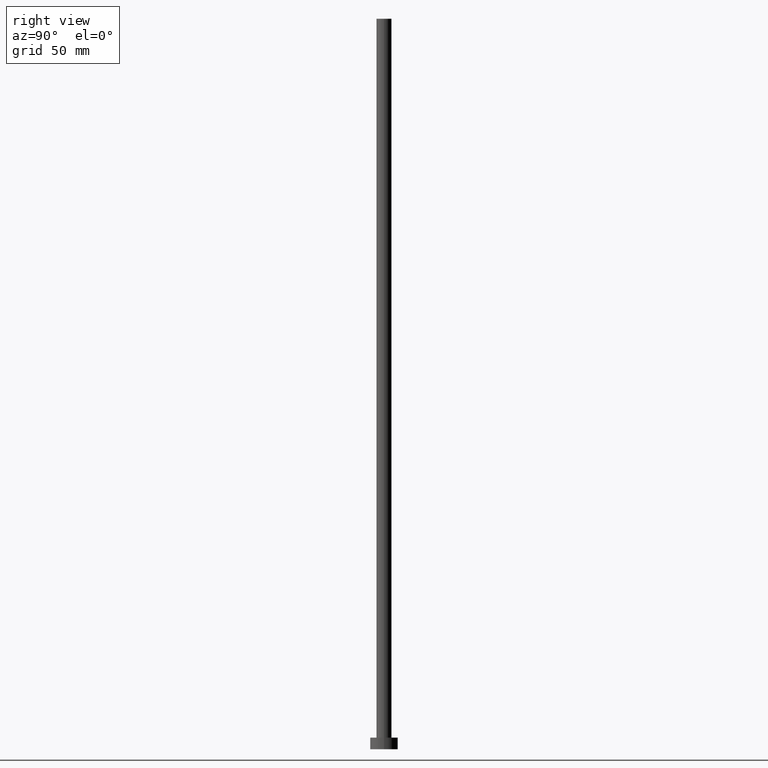
[diagram: clean part render]
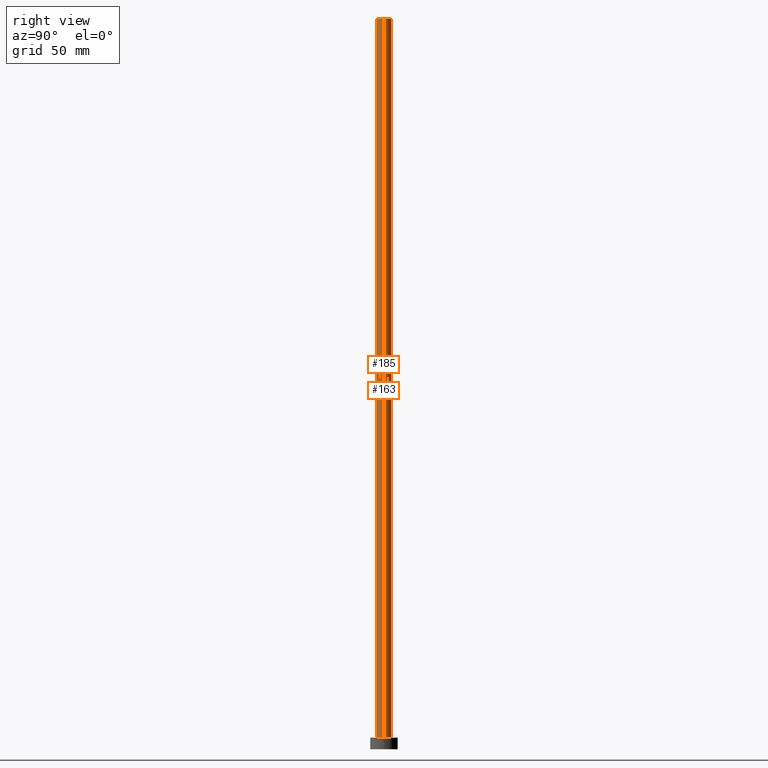
[diagram: same view with one multi-face feature highlighted, each face labeled with its STEP entity id]
A machine part, right view. The highlighted faces form ONE feature: a constant-radius fillet chain: 2 tangent blend faces with common blend radius 3.25 mm. The faces share edges in the B-rep.
Their STEP definitions:
[1] entity #163 (Cylinder):
#7 = CARTESIAN_POINT ( 'NONE',  ( 3.250000000000000444, 3.980102097228898231E-16, 315.0000000000000000 ) ) ;
#21 = CYLINDRICAL_SURFACE ( 'NONE', #174, 3.250000000000000444 ) ;
#22 = EDGE_CURVE ( 'NONE', #123, #122, #46, .T. ) ;
#28 = DIRECTION ( 'NONE',  ( -0.000000000000000000, -0.000000000000000000, -1.000000000000000000 ) ) ;
#46 = LINE ( 'NONE', #102, #100 ) ;
#47 = VERTEX_POINT ( 'NONE', #88 ) ;
#68 = ORIENTED_EDGE ( 'NONE', *, *, #244, .T. ) ;
#71 = EDGE_LOOP ( 'NONE', ( #168, #190, #68, #186 ) ) ;
#74 = CARTESIAN_POINT ( 'NONE',  ( 0.000000000000000000, 0.000000000000000000, 5.000000000000000000 ) ) ;
#77 = CARTESIAN_POINT ( 'NONE',  ( 0.000000000000000000, 0.000000000000000000, 315.0000000000000000 ) ) ;
#84 = LINE ( 'NONE', #208, #138 ) ;
#85 = EDGE_CURVE ( 'NONE', #47, #252, #84, .T. ) ;
#88 = CARTESIAN_POINT ( 'NONE',  ( -3.250000000000000444, 0.000000000000000000, 315.0000000000000000 ) ) ;
#97 = FACE_OUTER_BOUND ( 'NONE', #71, .T. ) ;
#100 = VECTOR ( 'NONE', #228, 1000.000000000000000 ) ;
#102 = CARTESIAN_POINT ( 'NONE',  ( 3.250000000000000444, 3.980102097228898231E-16, 315.0000000000000000 ) ) ;
#122 = VERTEX_POINT ( 'NONE', #204 ) ;
#123 = VERTEX_POINT ( 'NONE', #7 ) ;
#124 = EDGE_CURVE ( 'NONE', #123, #47, #188, .T. ) ;
#131 = DIRECTION ( 'NONE',  ( 0.000000000000000000, 0.000000000000000000, 1.000000000000000000 ) ) ;
#132 = DIRECTION ( 'NONE',  ( -0.000000000000000000, -0.000000000000000000, -1.000000000000000000 ) ) ;
#136 = AXIS2_PLACEMENT_3D ( 'NONE', #177, #160, #242 ) ;
#138 = VECTOR ( 'NONE', #28, 1000.000000000000000 ) ;
#151 = CARTESIAN_POINT ( 'NONE',  ( -3.250000000000000444, 0.000000000000000000, 5.000000000000000000 ) ) ;
#160 = DIRECTION ( 'NONE',  ( 0.000000000000000000, 0.000000000000000000, 1.000000000000000000 ) ) ;
#163 = ADVANCED_FACE ( 'NONE', ( #97 ), #21, .T. ) ;
#167 = AXIS2_PLACEMENT_3D ( 'NONE', #74, #131, #220 ) ;
#168 = ORIENTED_EDGE ( 'NONE', *, *, #124, .F. ) ;
#174 = AXIS2_PLACEMENT_3D ( 'NONE', #77, #132, #218 ) ;
#177 = CARTESIAN_POINT ( 'NONE',  ( 0.000000000000000000, 0.000000000000000000, 315.0000000000000000 ) ) ;
#186 = ORIENTED_EDGE ( 'NONE', *, *, #85, .F. ) ;
#188 = CIRCLE ( 'NONE', #136, 3.250000000000000444 ) ;
#190 = ORIENTED_EDGE ( 'NONE', *, *, #22, .T. ) ;
#204 = CARTESIAN_POINT ( 'NONE',  ( 3.250000000000000444, 3.980102097228898231E-16, 5.000000000000000000 ) ) ;
#208 = CARTESIAN_POINT ( 'NONE',  ( -3.250000000000000444, 0.000000000000000000, 315.0000000000000000 ) ) ;
#218 = DIRECTION ( 'NONE',  ( -1.000000000000000000, 0.000000000000000000, 0.000000000000000000 ) ) ;
#220 = DIRECTION ( 'NONE',  ( 1.000000000000000000, 0.000000000000000000, 0.000000000000000000 ) ) ;
#225 = CIRCLE ( 'NONE', #167, 3.250000000000000444 ) ;
#228 = DIRECTION ( 'NONE',  ( -0.000000000000000000, -0.000000000000000000, -1.000000000000000000 ) ) ;
#242 = DIRECTION ( 'NONE',  ( 1.000000000000000000, 0.000000000000000000, 0.000000000000000000 ) ) ;
#244 = EDGE_CURVE ( 'NONE', #122, #252, #225, .T. ) ;
#252 = VERTEX_POINT ( 'NONE', #151 ) ;
[2] entity #185 (Cylinder):
#7 = CARTESIAN_POINT ( 'NONE',  ( 3.250000000000000444, 3.980102097228898231E-16, 315.0000000000000000 ) ) ;
#8 = AXIS2_PLACEMENT_3D ( 'NONE', #240, #10, #59 ) ;
#10 = DIRECTION ( 'NONE',  ( 0.000000000000000000, 0.000000000000000000, 1.000000000000000000 ) ) ;
#12 = CARTESIAN_POINT ( 'NONE',  ( 0.000000000000000000, 0.000000000000000000, 5.000000000000000000 ) ) ;
#22 = EDGE_CURVE ( 'NONE', #123, #122, #46, .T. ) ;
#28 = DIRECTION ( 'NONE',  ( -0.000000000000000000, -0.000000000000000000, -1.000000000000000000 ) ) ;
#40 = DIRECTION ( 'NONE',  ( -1.000000000000000000, 0.000000000000000000, 0.000000000000000000 ) ) ;
#45 = DIRECTION ( 'NONE',  ( 1.000000000000000000, 0.000000000000000000, 0.000000000000000000 ) ) ;
#46 = LINE ( 'NONE', #102, #100 ) ;
#47 = VERTEX_POINT ( 'NONE', #88 ) ;
#48 = ORIENTED_EDGE ( 'NONE', *, *, #90, .T. ) ;
#53 = AXIS2_PLACEMENT_3D ( 'NONE', #60, #200, #40 ) ;
#59 = DIRECTION ( 'NONE',  ( 1.000000000000000000, 0.000000000000000000, 0.000000000000000000 ) ) ;
#60 = CARTESIAN_POINT ( 'NONE',  ( 0.000000000000000000, 0.000000000000000000, 315.0000000000000000 ) ) ;
#84 = LINE ( 'NONE', #208, #138 ) ;
#85 = EDGE_CURVE ( 'NONE', #47, #252, #84, .T. ) ;
#86 = DIRECTION ( 'NONE',  ( 0.000000000000000000, 0.000000000000000000, 1.000000000000000000 ) ) ;
#88 = CARTESIAN_POINT ( 'NONE',  ( -3.250000000000000444, 0.000000000000000000, 315.0000000000000000 ) ) ;
#90 = EDGE_CURVE ( 'NONE', #252, #122, #162, .T. ) ;
#100 = VECTOR ( 'NONE', #228, 1000.000000000000000 ) ;
#102 = CARTESIAN_POINT ( 'NONE',  ( 3.250000000000000444, 3.980102097228898231E-16, 315.0000000000000000 ) ) ;
#107 = EDGE_CURVE ( 'NONE', #47, #123, #119, .T. ) ;
#119 = CIRCLE ( 'NONE', #8, 3.250000000000000444 ) ;
#121 = ORIENTED_EDGE ( 'NONE', *, *, #85, .T. ) ;
#122 = VERTEX_POINT ( 'NONE', #204 ) ;
#123 = VERTEX_POINT ( 'NONE', #7 ) ;
#138 = VECTOR ( 'NONE', #28, 1000.000000000000000 ) ;
#139 = ORIENTED_EDGE ( 'NONE', *, *, #22, .F. ) ;
#143 = EDGE_LOOP ( 'NONE', ( #139, #251, #121, #48 ) ) ;
#151 = CARTESIAN_POINT ( 'NONE',  ( -3.250000000000000444, 0.000000000000000000, 5.000000000000000000 ) ) ;
#153 = FACE_OUTER_BOUND ( 'NONE', #143, .T. ) ;
#158 = CYLINDRICAL_SURFACE ( 'NONE', #53, 3.250000000000000444 ) ;
#162 = CIRCLE ( 'NONE', #253, 3.250000000000000444 ) ;
#185 = ADVANCED_FACE ( 'NONE', ( #153 ), #158, .T. ) ;
#200 = DIRECTION ( 'NONE',  ( -0.000000000000000000, -0.000000000000000000, -1.000000000000000000 ) ) ;
#204 = CARTESIAN_POINT ( 'NONE',  ( 3.250000000000000444, 3.980102097228898231E-16, 5.000000000000000000 ) ) ;
#208 = CARTESIAN_POINT ( 'NONE',  ( -3.250000000000000444, 0.000000000000000000, 315.0000000000000000 ) ) ;
#228 = DIRECTION ( 'NONE',  ( -0.000000000000000000, -0.000000000000000000, -1.000000000000000000 ) ) ;
#240 = CARTESIAN_POINT ( 'NONE',  ( 0.000000000000000000, 0.000000000000000000, 315.0000000000000000 ) ) ;
#251 = ORIENTED_EDGE ( 'NONE', *, *, #107, .F. ) ;
#252 = VERTEX_POINT ( 'NONE', #151 ) ;
#253 = AXIS2_PLACEMENT_3D ( 'NONE', #12, #86, #45 ) ;